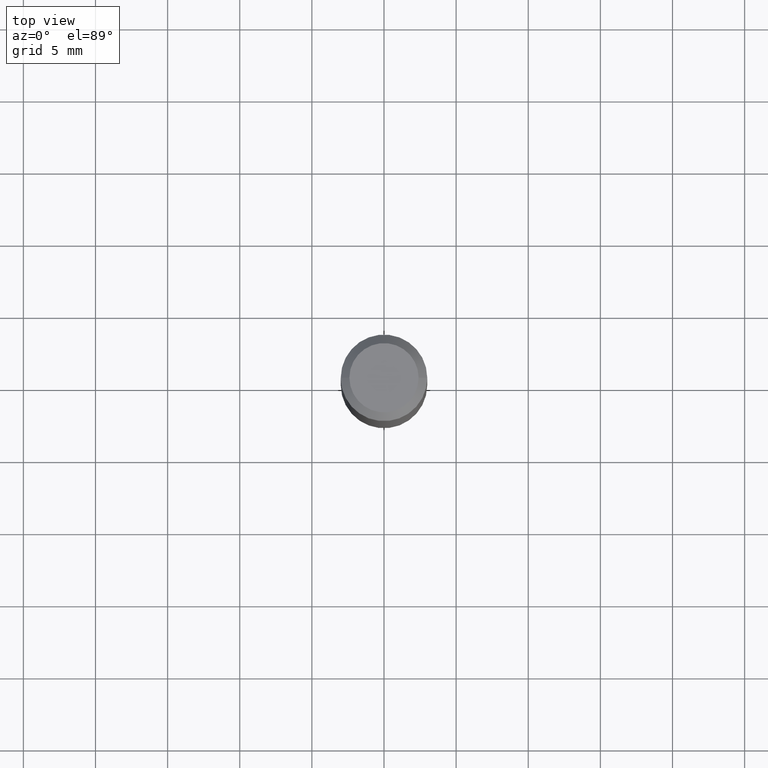
[diagram: clean part render]
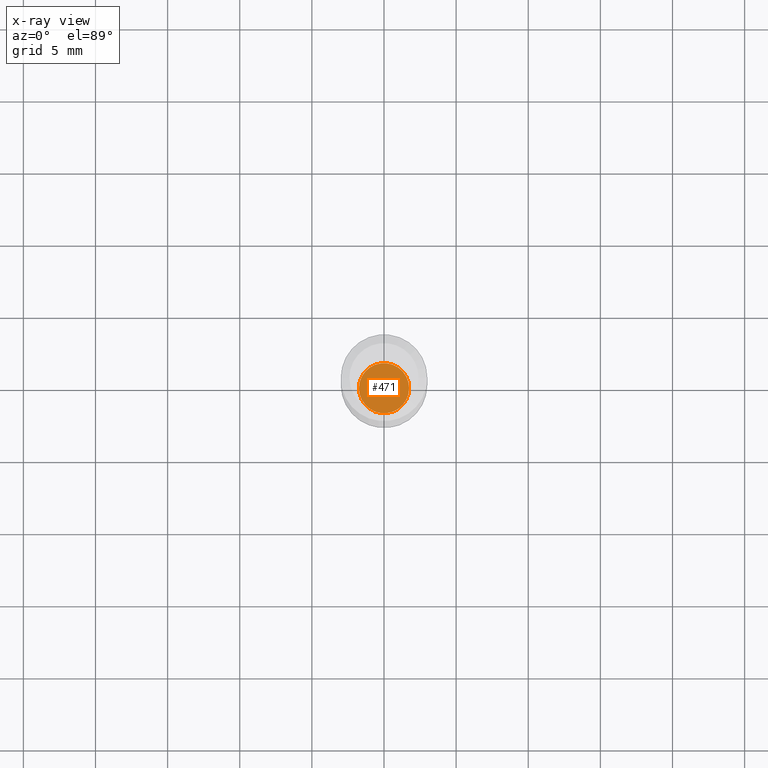
[diagram: x-ray — body ghosted, one internal face saturated and labeled with its STEP entity id]
A machine part, top view, then the same camera in x-ray: the body is ghosted and one INTERNAL B-rep face — a face not visible from any outside direction — is saturated and labeled: STEP entity #471.
In plain terms, the highlighted planar face has unit normal (-0, 0, 1).
Its self-contained STEP definition (entity closure, byte-faithful):
#16 = DIRECTION ( 'NONE',  ( 1.000000000000000000, -6.982962677686273810E-15, 0.000000000000000000 ) ) ;
#30 = CARTESIAN_POINT ( 'NONE',  ( 0.06840000000000000246, -6.250799040930883381E-15, -1.653500000000000192 ) ) ;
#76 = DIRECTION ( 'NONE',  ( -2.445468806185136597E-29, 3.491481338843145583E-15, 1.000000000000000000 ) ) ;
#92 = EDGE_CURVE ( 'NONE', #310, #500, #365, .T. ) ;
#96 = AXIS2_PLACEMENT_3D ( 'NONE', #413, #490, #126 ) ;
#114 = CARTESIAN_POINT ( 'NONE',  ( 4.043582671027123762E-29, -5.773164393777141860E-15, -1.653500000000000192 ) ) ;
#126 = DIRECTION ( 'NONE',  ( 1.000000000000000000, -6.982962677686265922E-15, 4.876176775795935793E-29 ) ) ;
#155 = DIRECTION ( 'NONE',  ( 1.000000000000000000, -6.982962677686273810E-15, 0.000000000000000000 ) ) ;
#164 = EDGE_CURVE ( 'NONE', #500, #310, #437, .T. ) ;
#168 = EDGE_LOOP ( 'NONE', ( #301, #458 ) ) ;
#169 = FACE_OUTER_BOUND ( 'NONE', #168, .T. ) ;
#236 = DIRECTION ( 'NONE',  ( -2.445468806185136597E-29, 3.491481338843145583E-15, 1.000000000000000000 ) ) ;
#301 = ORIENTED_EDGE ( 'NONE', *, *, #92, .F. ) ;
#310 = VERTEX_POINT ( 'NONE', #30 ) ;
#321 = CARTESIAN_POINT ( 'NONE',  ( -0.06840000000000000246, -5.284503935343122016E-15, -1.653500000000000192 ) ) ;
#332 = PLANE ( 'NONE',  #96 ) ;
#345 = AXIS2_PLACEMENT_3D ( 'NONE', #114, #76, #155 ) ;
#354 = AXIS2_PLACEMENT_3D ( 'NONE', #377, #236, #16 ) ;
#365 = CIRCLE ( 'NONE', #345, 0.06840000000000000246 ) ;
#377 = CARTESIAN_POINT ( 'NONE',  ( 4.043582671027123762E-29, -5.773164393777141860E-15, -1.653500000000000192 ) ) ;
#413 = CARTESIAN_POINT ( 'NONE',  ( -5.679400091582539681E-30, -1.237712734337342927E-14, -1.653500000000000192 ) ) ;
#437 = CIRCLE ( 'NONE', #354, 0.06840000000000000246 ) ;
#458 = ORIENTED_EDGE ( 'NONE', *, *, #164, .F. ) ;
#471 = ADVANCED_FACE ( 'NONE', ( #169 ), #332, .F. ) ;
#490 = DIRECTION ( 'NONE',  ( -2.438088387897960049E-29, 3.491481338843145188E-15, 1.000000000000000000 ) ) ;
#500 = VERTEX_POINT ( 'NONE', #321 ) ;